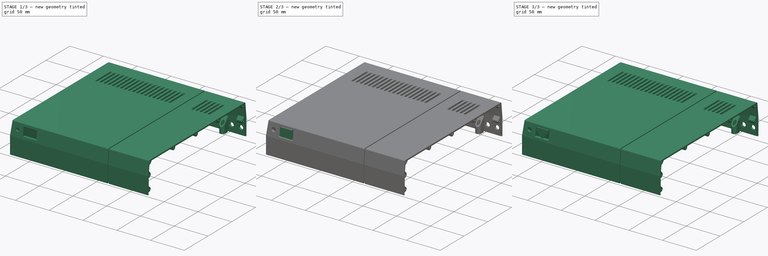
[diagram: build sequence overview — one tinted view per stage of 3, left to right]
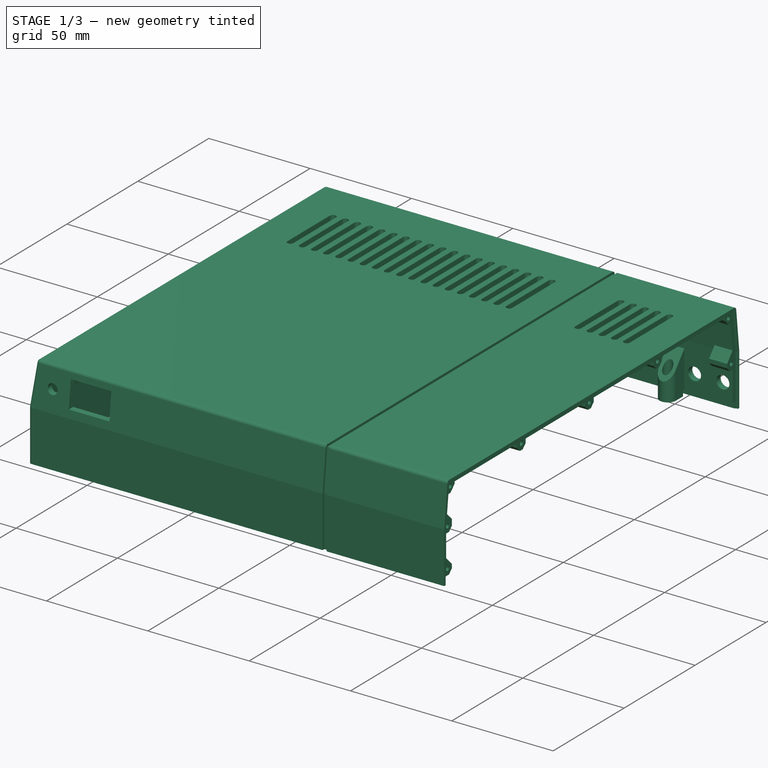
[diagram: stage 1 of 3 — iso view after this stage's code; geometry added in this stage tinted green]
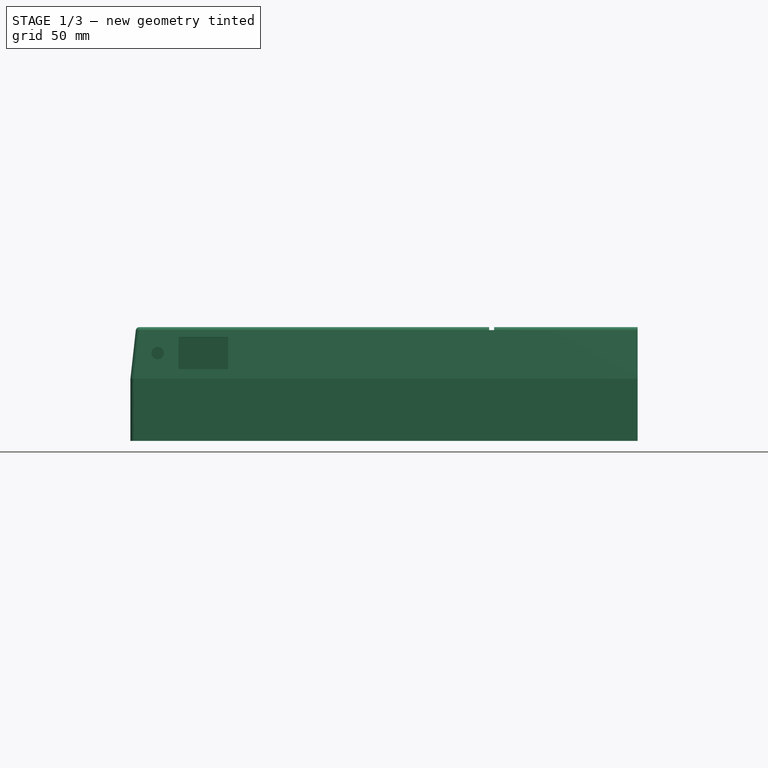
[diagram: stage 1 of 3 — front view after this stage's code; geometry added in this stage tinted green]
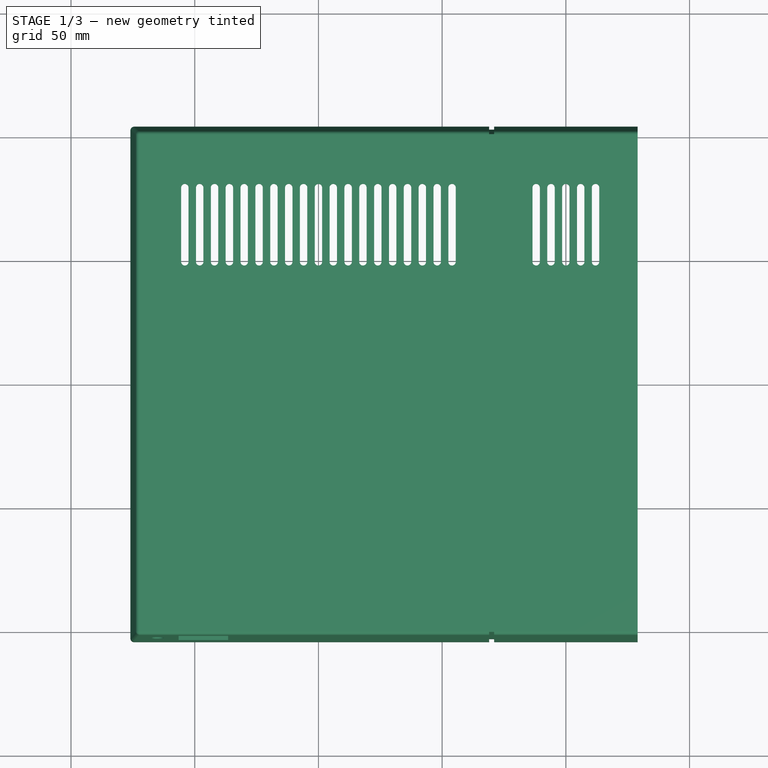
[diagram: stage 1 of 3 — top view after this stage's code; geometry added in this stage tinted green]
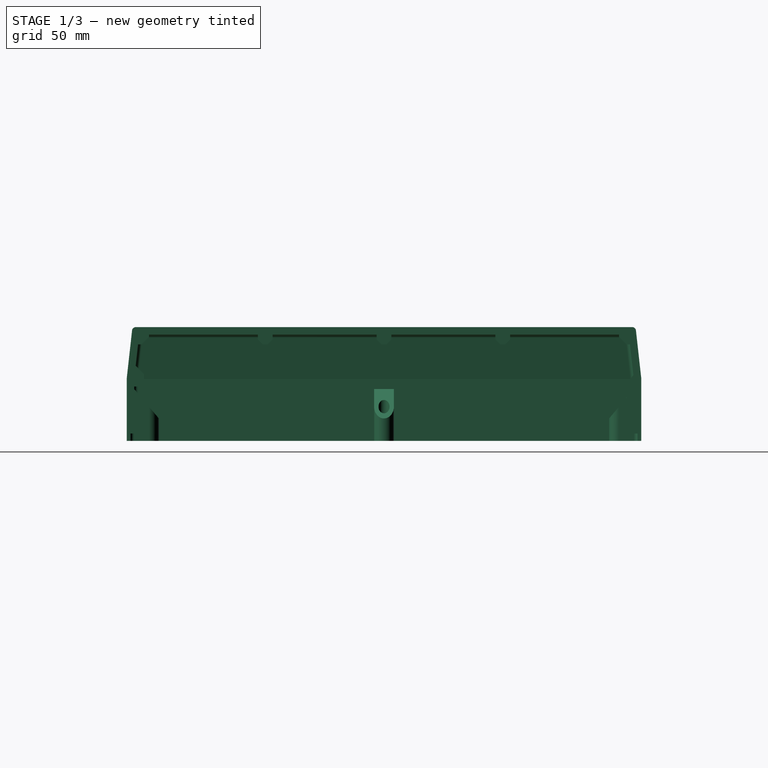
[diagram: stage 1 of 3 — right view after this stage's code; geometry added in this stage tinted green]
FCSTD DOCUMENT  (FreeCAD 0.21R33771 (Git))
Label: TopLeft
License: All rights reserved
LicenseURL: https://en.wikipedia.org/wiki/All_rights_reserved
objects: Part::Feature×14, App::Part×4, Sketcher::SketchObject×4, PartDesign::Pocket×2, PartDesign::Body×2, PartDesign::Pad×1, PartDesign::FeatureBase×1, PartDesign::Fillet×1, PartDesign::Chamfer×1
note: 31 computed .brp shape members not serialized (recipe doc carries the construction recipe); baked Part::Feature solids carry a one-line shape summary decoded from their .brp

FEATURE [PartDesign::Body] Body  label="Power cutout support"
  Group = -> [Sketch,Sketch001,Pad,Sketch002,Pocket,Sketch003,Pocket001]
  Origin = -> Origin004
  Placement = pos=(3e-15,-203.2,83) rot=(1,0,0;3.14159rad)
  Tip = -> Pocket001
FEATURE [App::Part] Part  label="Support"
  Group = -> [Body]
  Origin = -> Origin003
FEATURE [PartDesign::FeatureBase] Clone
  BaseFeature = -> Part__Feature013
FEATURE [PartDesign::Fillet] Fillet
  Base = -> Clone [Edge566,Edge562,Edge563,Edge564,Edge568,Edge684,Edge678,Edge690,Edge579,Edge674,Edge453,Edge208,Edge4,Edge5,Edge491,Edge198,Edge519]
  BaseFeature = -> Clone
  Radius = 1.5
  Refine = true
  SupportTransform = false
  UseAllEdges = false
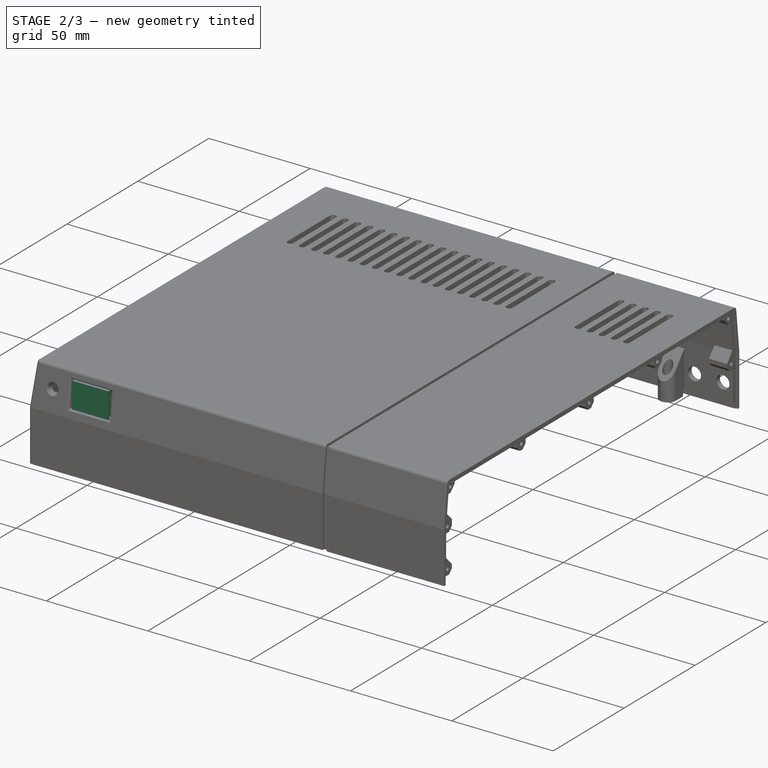
[diagram: stage 2 of 3 — iso view after this stage's code; geometry added in this stage tinted green]
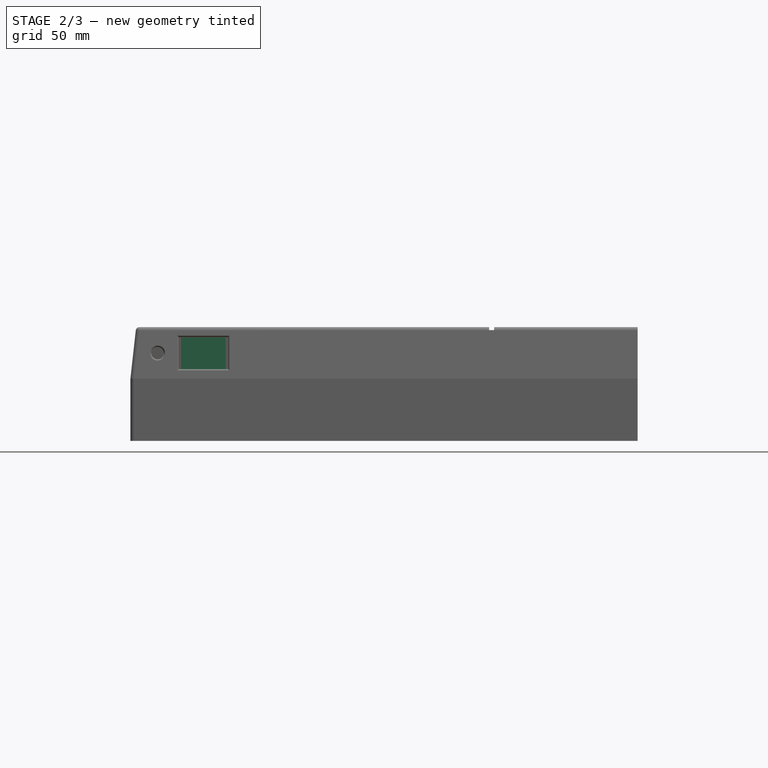
[diagram: stage 2 of 3 — front view after this stage's code; geometry added in this stage tinted green]
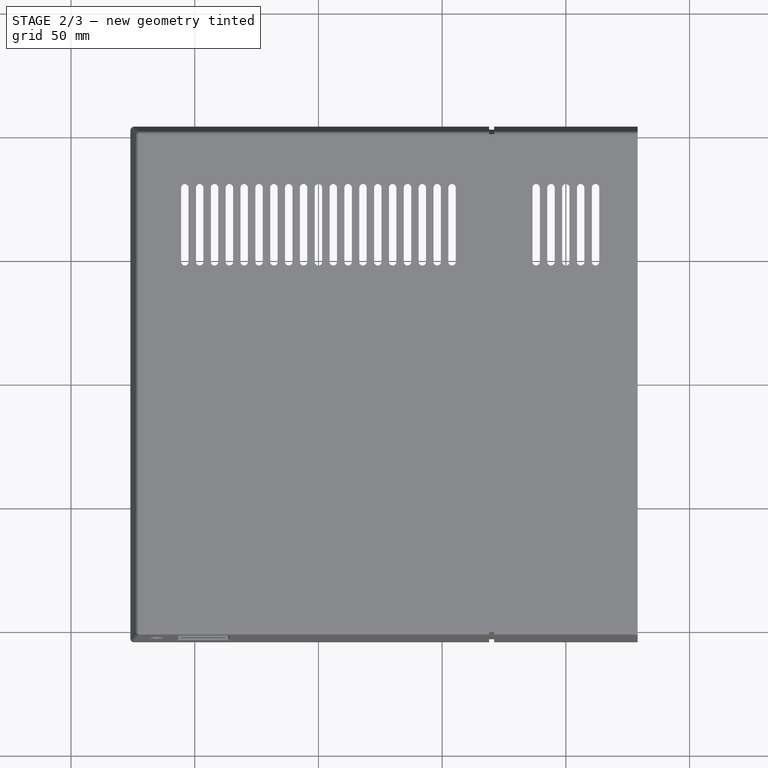
[diagram: stage 2 of 3 — top view after this stage's code; geometry added in this stage tinted green]
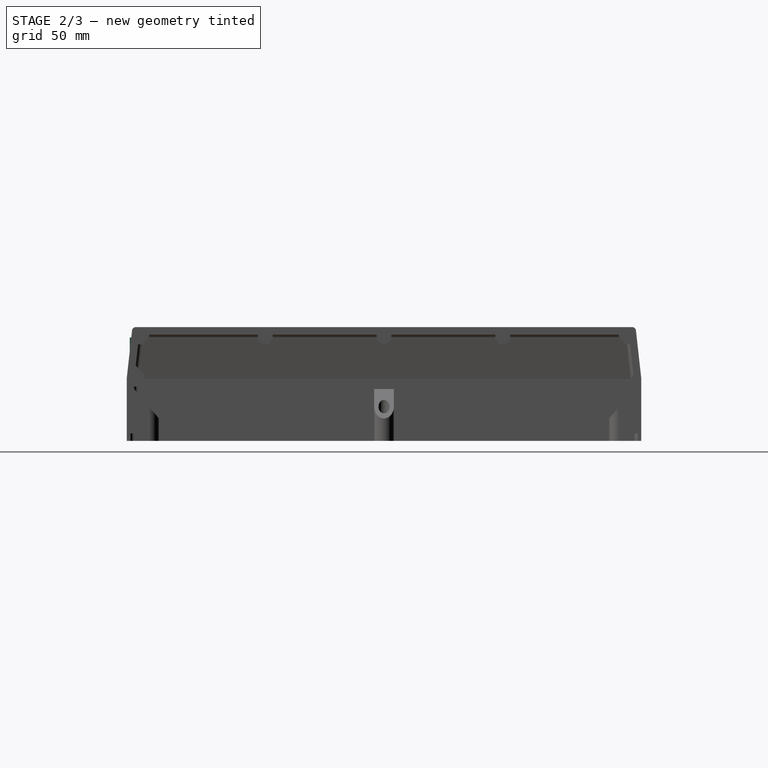
[diagram: stage 2 of 3 — right view after this stage's code; geometry added in this stage tinted green]
FEATURE [Part::Feature] Part__Feature  label="LeftMount"
  shape: bbox 8 x 11 x 11.5 mm, 10 faces (baked)
FEATURE [Part::Feature] Part__Feature001  label="FrontSupport"
  shape: bbox 14 x 3 x 2 mm, 6 faces (baked)
FEATURE [Part::Feature] Part__Feature002  label="BackSupport"
  Placement = pos=(0,25,0) rot=(0,0,1;0rad)
  shape: bbox 14 x 3 x 2 mm, 6 faces (baked)
FEATURE [Part::Feature] Part__Feature003  label="RightMount"
  Placement = pos=(20.5,0,0) rot=(0.57735,0.57735,0.57735;2.0944rad)
  shape: bbox 8 x 11 x 11.5 mm, 10 faces (baked)
FEATURE [App::Part] PowerSwitchMount
  Group = -> [Part__Feature,Part__Feature001,Part__Feature002,Part__Feature003]
  Origin = -> Origin
FEATURE [Part::Feature] Part__Feature004  label="Iface001"
  shape: bbox 8 x 10.12 x 12.9 mm, 16 faces (baked)
FEATURE [Part::Feature] Part__Feature005  label="Iface left (clone)"
  Placement = pos=(-109.8,0,0) rot=(0,0,1;0rad)
  shape: bbox 3.6 x 8 x 16 mm, 8 faces (baked)
FEATURE [Part::Feature] Part__Feature006  label="Iface right (clone)"
  shape: bbox 6.6 x 9.532 x 16 mm, 14 faces (baked)
FEATURE [App::Part] Body_screw_posts  label="Body screw posts"
  Group = -> [Part__Feature004,Part__Feature005,Part__Feature006]
  Origin = -> Origin001
FEATURE [Part::Feature] Part__Feature007  label="Iface tio"
  shape: bbox 8 x 10.12 x 12.9 mm, 16 faces (baked)
FEATURE [Part::Feature] Part__Feature008  label="Iface left (clone)001"
  Placement = pos=(-109.8,0,0) rot=(0,0,1;0rad)
  shape: bbox 3.6 x 8 x 16 mm, 8 faces (baked)
FEATURE [Part::Feature] Part__Feature009  label="Iface right (clone)001"
  shape: bbox 6.6 x 9.532 x 16 mm, 14 faces (baked)
FEATURE [Part::Feature] Part__Feature010  label="Mount 1"
  Placement = pos=(-30,-73,-1) rot=(0,0,1;0rad)
  shape: bbox 8 x 4 x 4 mm, 14 faces (baked)
FEATURE [Part::Feature] Part__Feature011  label="Mount 2"
  Placement = pos=(-30,0,-1) rot=(0,0,1;0rad)
  shape: bbox 8 x 4 x 4 mm, 14 faces (baked)
FEATURE [Part::Feature] Part__Feature012  label="Cable holder"
  shape: bbox 6 x 4 x 3.8 mm, 18 faces (baked)
FEATURE [Part::Feature] Part__Feature013  label="Case left slice"
  shape: bbox 349 x 208 x 55 mm, 247 faces (baked)
FEATURE [App::Part] CaseTopWithGrooves  label="Top Left Slice"
  Group = -> [PowerSwitchMount,Body_screw_posts,Part__Feature007,Part__Feature008,Part__Feature009,Part__Feature010,Part__Feature011,Part__Feature012,Part__Feature013]
  Origin = -> Origin002
FEATURE [Sketcher::SketchObject] Sketch
  AttachmentOffset = pos=(0,0,102) rot=(0,0,1;0rad)
  FullyConstrained = true
  MapMode = 5
  Placement = pos=(0,-102,-2.26e-14) rot=(1,0,0;1.5708rad)
  Support = -> [XZ_Plane004]
  sketch-geometry (9):
    g0: LineSegment StartX=-156.5 StartY=48 StartZ=0 EndX=-136.5 EndY=48 EndZ=0
    g1: LineSegment StartX=-136.5 StartY=48 StartZ=0 EndX=-136.5 EndY=35 EndZ=0
    g2: LineSegment StartX=-136.5 StartY=35 StartZ=0 EndX=-156.5 EndY=35 EndZ=0
    g3: LineSegment StartX=-156.5 StartY=35 StartZ=0 EndX=-156.5 EndY=48 EndZ=0
    g4: LineSegment StartX=-137 StartY=35.3 StartZ=0 EndX=-156 EndY=35.3 EndZ=0
    g5: LineSegment StartX=-156 StartY=35.3 StartZ=0 EndX=-156 EndY=48 EndZ=0
    g6: LineSegment StartX=-156 StartY=48 StartZ=0 EndX=-137 EndY=48 EndZ=0
    g7: LineSegment StartX=-137 StartY=48 StartZ=0 EndX=-137 EndY=35.3 EndZ=0
    g8: LineSegment StartX=-146.5 StartY=34.0512 StartZ=0 EndX=-146.5 EndY=48.3601 EndZ=0
  constraints (25):
    c: Coincident(g0,g1)
    c: Coincident(g1,g2)
    c: Coincident(g2,g3)
    c: Coincident(g3,g0)
    c: Horizontal(g0)
    c: Horizontal(g2)
    c: Vertical(g1)
    c: Vertical(g3)
    c: Coincident(g4,g5)
    c: Coincident(g5,g6)
    c: Coincident(g6,g7)
    c: Coincident(g7,g4)
    c: Horizontal(g4)
    c: Horizontal(g6)
    c: Vertical(g5)
    c: Vertical(g7)
    c: DistanceX(g2,g2) = 20
    c: Block(g2)
    c: Block(g1)
    c: Symmetric(g4,g4,g8)
    c: DistanceX(g4,g1) = 0.5
    c: DistanceX(g8,g1) = 10
    c: Block(g8)
    c: PointOnObject(g6,g0)
    c: Distance(g4,g2) = 0.3
FEATURE [Sketcher::SketchObject] Sketch001
  AttachmentOffset = pos=(-0.5,0,-146.5) rot=(0,0,1;0rad)
  FullyConstrained = false
  MapMode = 5
  Placement = pos=(-146.5,-0.5,-3.24e-14) rot=(0.57735,0.57735,0.57735;2.0944rad)
  Support = -> [YZ_Plane004]
  sketch-geometry (8):
    g0: LineSegment StartX=-102.251 StartY=35 StartZ=0 EndX=-101.751 EndY=35 EndZ=0
    g1: LineSegment StartX=-101.751 StartY=35 StartZ=0 EndX=-101 EndY=37 EndZ=0
    g2: LineSegment StartX=-99 StartY=47 StartZ=0 EndX=-99 EndY=47.8 EndZ=0
    g3: LineSegment StartX=-99 StartY=47.8 StartZ=0 EndX=-102.251 EndY=47.8 EndZ=0
    g4: LineSegment StartX=-101 StartY=37 StartZ=0 EndX=-101 EndY=46.017 EndZ=0
    g5: LineSegment StartX=-101 StartY=46.017 StartZ=0 EndX=-99 EndY=47 EndZ=0
    g6: LineSegment StartX=-102.251 StartY=47.8 StartZ=0 EndX=-102.251 EndY=46.9987 EndZ=0
    g7: LineSegment StartX=-102.251 StartY=46.9987 StartZ=0 EndX=-102.251 EndY=35 EndZ=0
  constraints (16):
    c: Horizontal(g0)
    c: Coincident(g0,g1)
    c: Coincident(g1,g4)
    c: Coincident(g5,g2)
    c: Vertical(g2)
    c: Coincident(g2,g3)
    c: Horizontal(g3)
    c: Coincident(g3,g6)
    c: Coincident(g7,g0)
    c: DistanceX(g0,g0) = 0.5
    c: Coincident(g4,g5)
    c: Coincident(g6,g7)
    c: Parallel(g4,g7)
    c: Parallel(g7,g-2)
    c: Parallel(g6,g2)
    c: Block(g3)
FEATURE [PartDesign::Pad] Pad
  Direction = (1,-2e-16,3e-16)
  Length = 18
  Length2 = 10
  Midplane = true
  Placement = pos=(0,0,0) rot=(0.57735,0.57735,0.57735;2.0944rad)
  Profile = -> Sketch001
  ReferenceAxis = -> Sketch001 [N_Axis]
  Refine = true
  Type = 0
FEATURE [PartDesign::Chamfer] Chamfer
  Angle = 45
  Base = -> Fillet [Edge574,Edge582,Edge581,Edge579,Edge576,Edge714,Edge716]
  BaseFeature = -> Fillet
  ChamferType = 0
  FlipDirection = false
  Refine = true
  Size = 0.5
  Size2 = 1
  SupportTransform = false
  UseAllEdges = false
FEATURE [PartDesign::Body] Body001
  Group = -> [Clone,Fillet,Chamfer]
  Origin = -> Origin005
  Tip = -> Chamfer
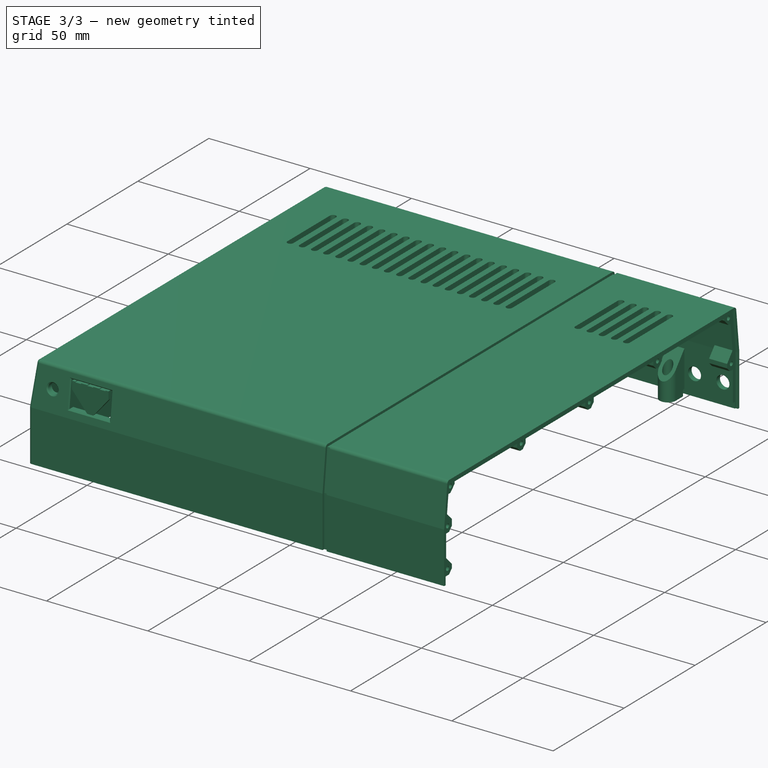
[diagram: stage 3 of 3 — iso view after this stage's code; geometry added in this stage tinted green]
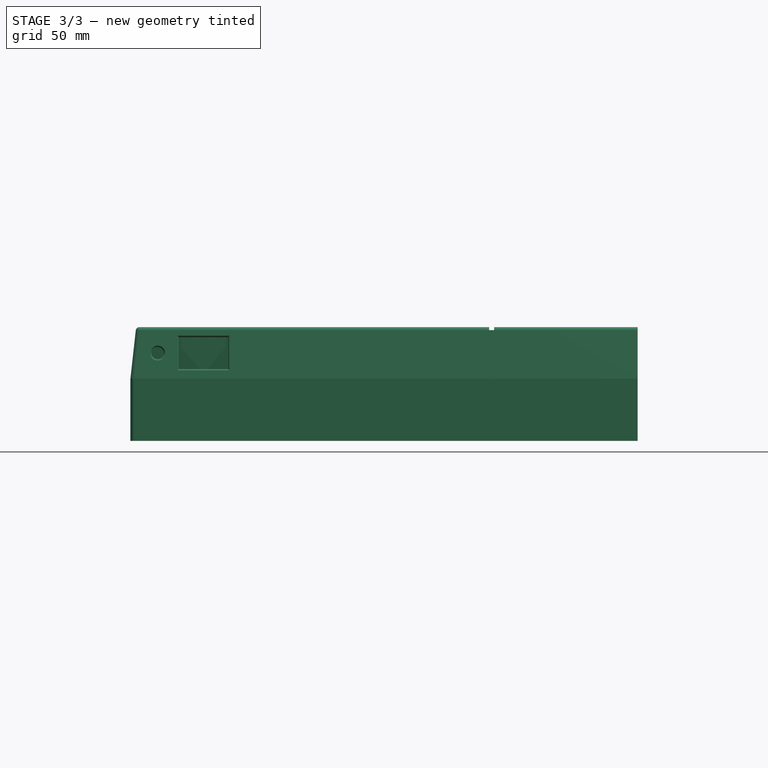
[diagram: stage 3 of 3 — front view after this stage's code; geometry added in this stage tinted green]
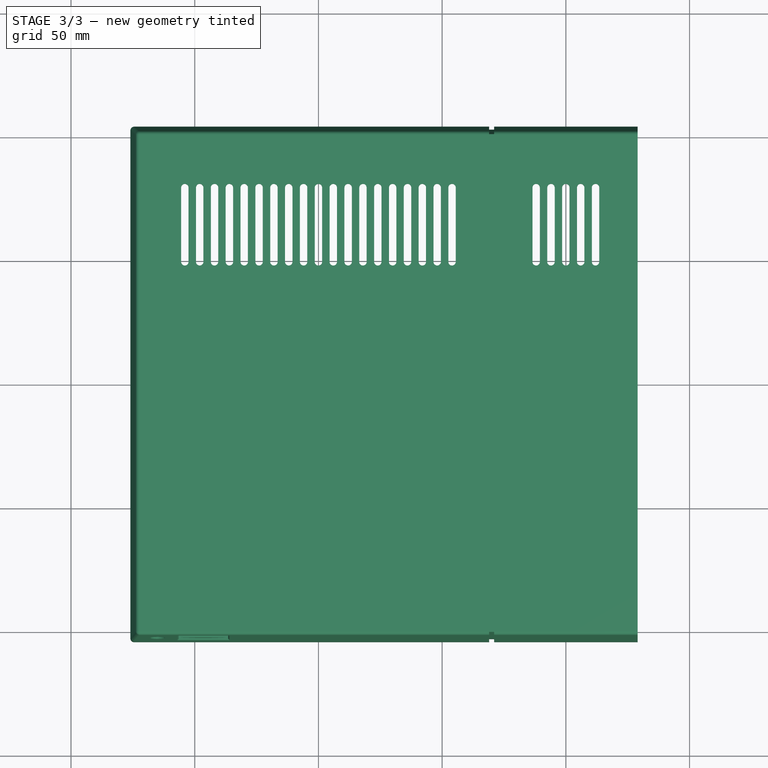
[diagram: stage 3 of 3 — top view after this stage's code; geometry added in this stage tinted green]
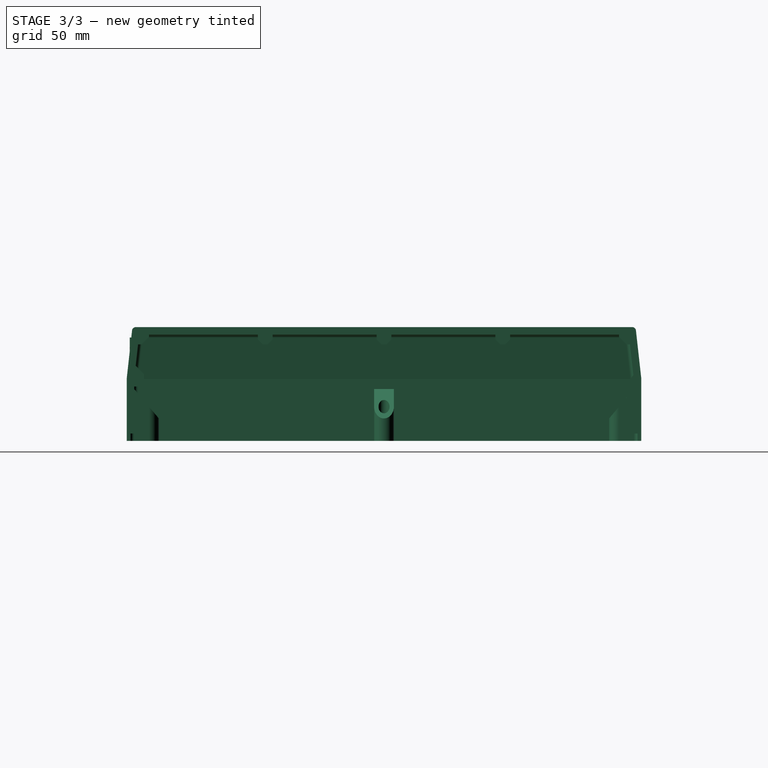
[diagram: stage 3 of 3 — right view after this stage's code; geometry added in this stage tinted green]
FEATURE [Sketcher::SketchObject] Sketch002
  AttachmentOffset = pos=(0,0,99) rot=(0,0,1;0rad)
  ExternalGeometry = -> [Pad]
  FullyConstrained = false
  MapMode = 5
  Placement = pos=(0,-99,-2.2e-14) rot=(1,0,0;1.5708rad)
  Support = -> [XZ_Plane004]
  sketch-geometry (7):
    g0: LineSegment StartX=-137 StartY=44.534 StartZ=0 EndX=-145 EndY=35 EndZ=0
    g1: LineSegment StartX=-145 StartY=35 StartZ=0 EndX=-137 EndY=35 EndZ=0
    g2: LineSegment StartX=-137 StartY=35 StartZ=0 EndX=-137 EndY=44.534 EndZ=0
    g3: LineSegment StartX=-146.5 StartY=50.3818 StartZ=0 EndX=-146.5 EndY=32.313 EndZ=0
    g4: LineSegment StartX=-156 StartY=44.534 StartZ=0 EndX=-148 EndY=35 EndZ=0
    g5: LineSegment StartX=-148 StartY=35 StartZ=0 EndX=-156 EndY=35 EndZ=0
    g6: LineSegment StartX=-156 StartY=35 StartZ=0 EndX=-156 EndY=44.534 EndZ=0
  constraints (13):
    c: Coincident(g0,g1)
    c: Horizontal(g1)
    c: Coincident(g1,g2)
    c: Vertical(g2)
    c: Coincident(g0,g2)
    c: Symmetric(g-3,g-3,g3)
    c: Block(g3)
    c: Angle(g1,g0) = 0.872665
    c: Distance(g0,g3) = 1.5
    c: Coincident(g4,g5)
    c: Coincident(g5,g6)
    c: Coincident(g4,g6)
    c: Angle(g5,g4) = -0.872665
FEATURE [PartDesign::Pocket] Pocket
  BaseFeature = -> Pad
  Direction = (0,1,-2e-16)
  Length = 5
  Length2 = 5
  Placement = pos=(0,0,0) rot=(0.57735,0.57735,0.57735;2.0944rad)
  Profile = -> Sketch002
  ReferenceAxis = -> Sketch002 [N_Axis]
  Refine = true
  Reversed = true
  Type = 0
FEATURE [Sketcher::SketchObject] Sketch003
  AttachmentOffset = pos=(0,0,99) rot=(0,0,1;0rad)
  FullyConstrained = false
  MapMode = 5
  Placement = pos=(0,-99,-2.2e-14) rot=(1,0,0;1.5708rad)
  Support = -> [XZ_Plane004]
  sketch-geometry (12):
    g0: LineSegment StartX=-154 StartY=47.875 StartZ=0 EndX=-151 EndY=47.875 EndZ=0
    g1: LineSegment StartX=-151 StartY=47.875 StartZ=0 EndX=-151 EndY=47.5 EndZ=0
    g2: LineSegment StartX=-151 StartY=47.5 StartZ=0 EndX=-154 EndY=47.5 EndZ=0
    g3: LineSegment StartX=-154 StartY=47.5 StartZ=0 EndX=-154 EndY=47.875 EndZ=0
    g4: LineSegment StartX=-142 StartY=47.875 StartZ=0 EndX=-139 EndY=47.875 EndZ=0
    g5: LineSegment StartX=-139 StartY=47.875 StartZ=0 EndX=-139 EndY=47.5 EndZ=0
    g6: LineSegment StartX=-139 StartY=47.5 StartZ=0 EndX=-142 EndY=47.5 EndZ=0
    g7: LineSegment StartX=-142 StartY=47.5 StartZ=0 EndX=-142 EndY=47.875 EndZ=0
    g8: LineSegment StartX=-148 StartY=47.875 StartZ=0 EndX=-145 EndY=47.875 EndZ=0
    g9: LineSegment StartX=-145 StartY=47.875 StartZ=0 EndX=-145 EndY=47.5 EndZ=0
    g10: LineSegment StartX=-145 StartY=47.5 StartZ=0 EndX=-148 EndY=47.5 EndZ=0
    g11: LineSegment StartX=-148 StartY=47.5 StartZ=0 EndX=-148 EndY=47.875 EndZ=0
  constraints (24):
    c: Coincident(g0,g1)
    c: Coincident(g1,g2)
    c: Coincident(g2,g3)
    c: Coincident(g3,g0)
    c: Horizontal(g0)
    c: Horizontal(g2)
    c: Vertical(g1)
    c: Vertical(g3)
    c: Coincident(g4,g5)
    c: Coincident(g5,g6)
    c: Coincident(g6,g7)
    c: Coincident(g7,g4)
    c: Horizontal(g4)
    c: Horizontal(g6)
    c: Vertical(g5)
    c: Vertical(g7)
    c: Coincident(g8,g9)
    c: Coincident(g9,g10)
    c: Coincident(g10,g11)
    c: Coincident(g11,g8)
    c: Horizontal(g8)
    c: Horizontal(g10)
    c: Vertical(g9)
    c: Vertical(g11)
FEATURE [PartDesign::Pocket] Pocket001
  BaseFeature = -> Pocket
  Direction = (0,1,2e-16)
  Length = 5
  Length2 = 5
  Placement = pos=(0,0,0) rot=(0.57735,0.57735,0.57735;2.0944rad)
  Profile = -> Sketch003
  ReferenceAxis = -> Sketch003 [N_Axis]
  Refine = true
  Reversed = true
  Type = 0
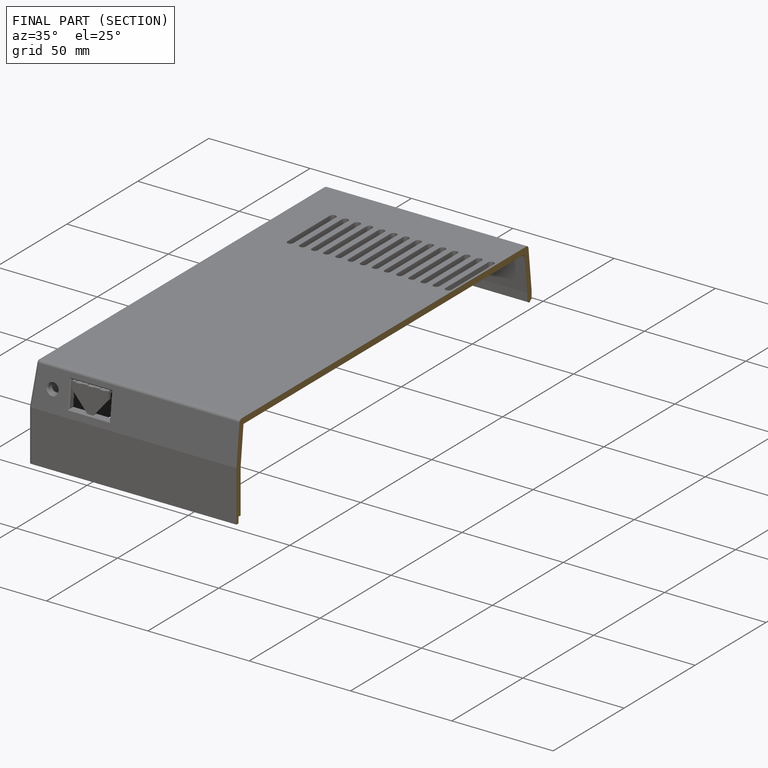
[diagram: finished part — half-section view (interior)]
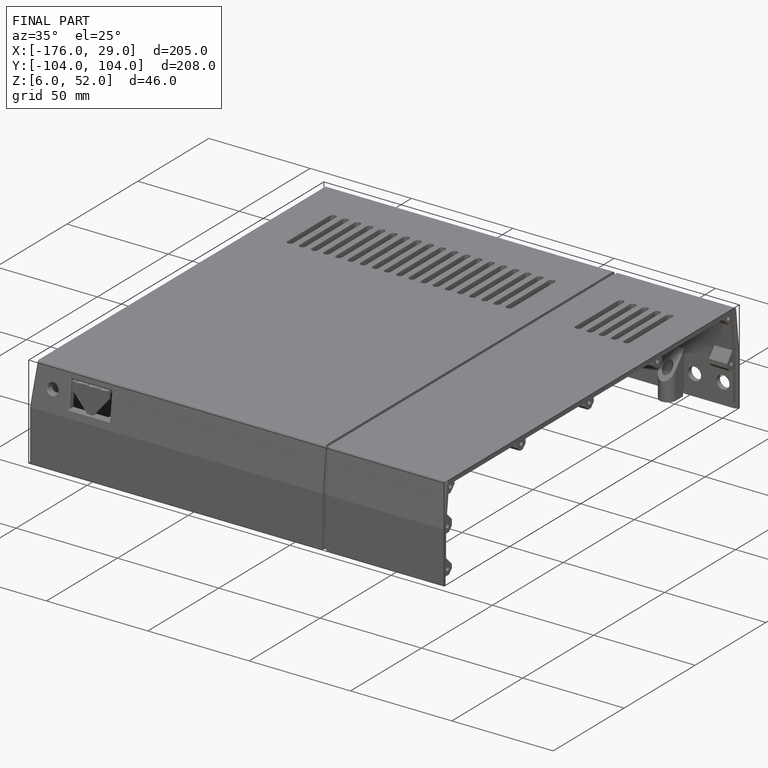
[diagram: finished part — iso view with bounding-box wireframe]
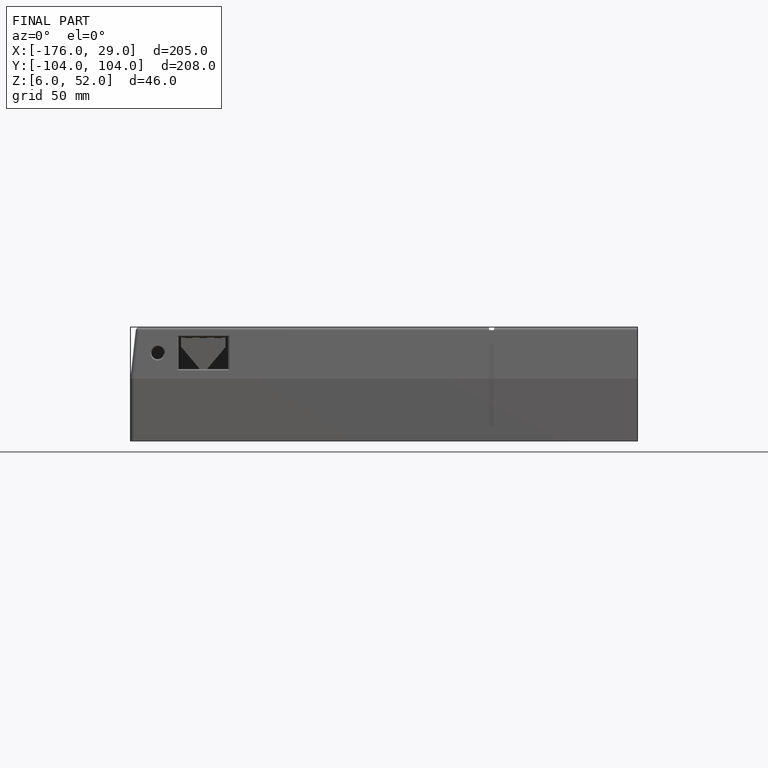
[diagram: finished part — front view with bounding-box wireframe]
